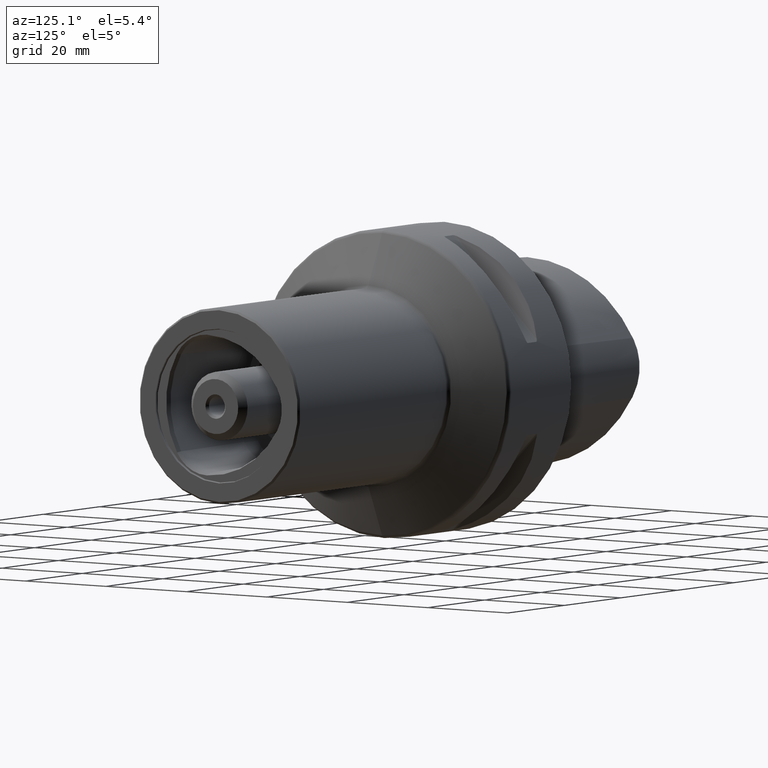
[diagram: clean part render]
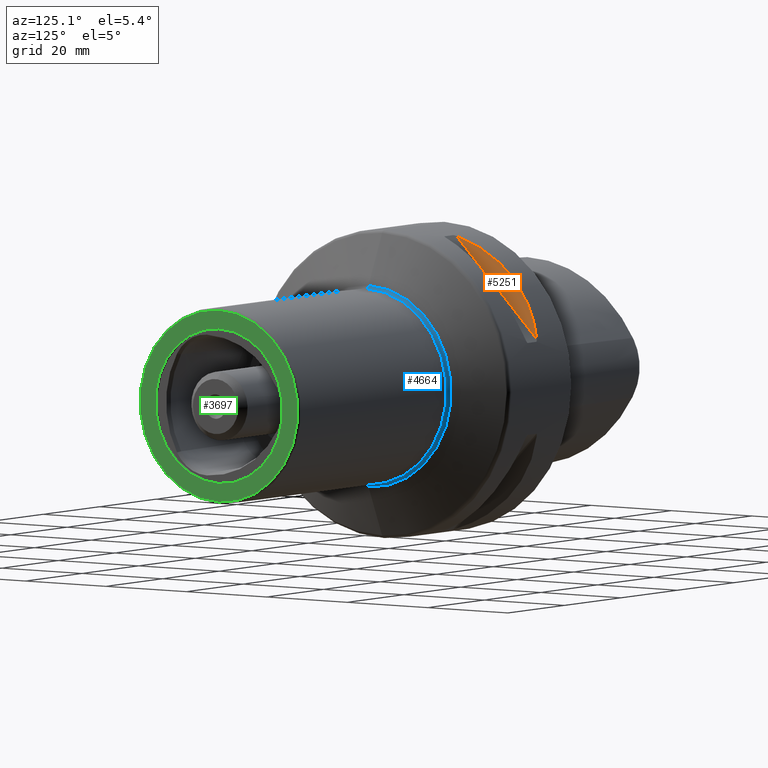
[diagram: same view with three faces highlighted in distinct colors, each labeled with its STEP entity id]
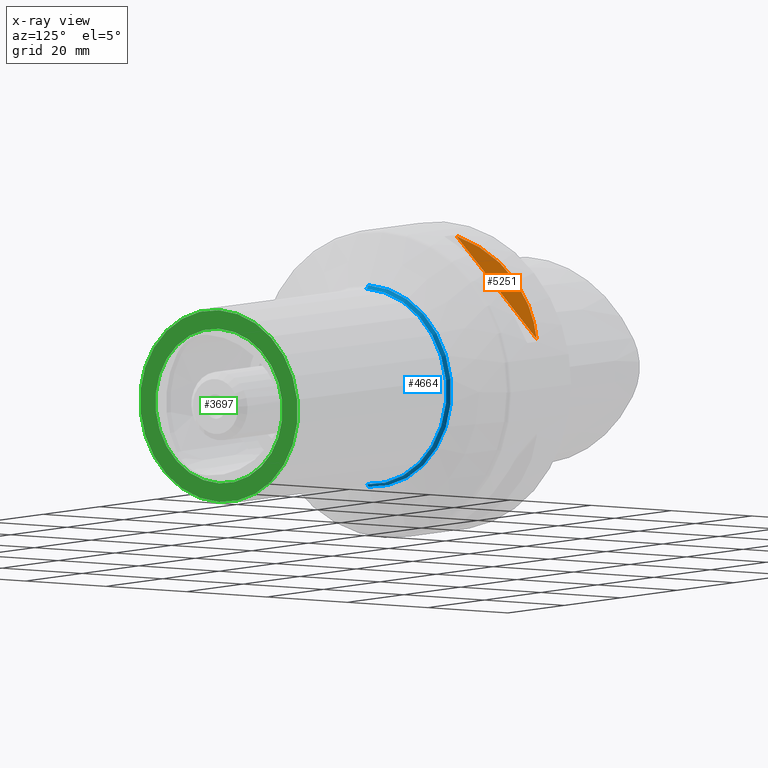
[diagram: x-ray of the same camera — body ghosted, the three highlighted faces saturated]
A machine part, auxiliary view with three faces highlighted in distinct colors.
The next image is the same camera in x-ray (body ghosted, the three faces saturated) — at least one of them is partly hidden behind the body in this view.
Their STEP definitions:

[orange] entity #5251 — the highlighted planar face has unit normal (-0.866, -0.3536, -0.3536).
#9 = ORIENTED_EDGE ( 'NONE', *, *, #2400, .F. ) ;
#185 = EDGE_LOOP ( 'NONE', ( #9, #4343 ) ) ;
#694 = DIRECTION ( 'NONE',  ( -0.3779644730092250900, 0.0000000000000000000, 0.9258200997725522000 ) ) ;
#868 = FACE_OUTER_BOUND ( 'NONE', #185, .T. ) ;
#1102 = CARTESIAN_POINT ( 'NONE',  ( 7.466715389202943400, 26.70987237765825400, 19.53756880257741100 ) ) ;
#1129 = CARTESIAN_POINT ( 'NONE',  ( 10.09474411167422200, 29.90074246011725400, 9.909369320685410500 ) ) ;
#1154 = CARTESIAN_POINT ( 'NONE',  ( 10.09474411167422200, 29.90074246011725400, 9.909369320685410500 ) ) ;
#1678 = VERTEX_POINT ( 'NONE', #4087 ) ;
#1696 = EDGE_CURVE ( 'NONE', #5761, #1678, #2861, .T. ) ;
#2333 = PLANE ( 'NONE',  #5237 ) ;
#2400 = EDGE_CURVE ( 'NONE', #1678, #5761, #3382, .T. ) ;
#2861 = LINE ( 'NONE', #6251, #3378 ) ;
#3378 = VECTOR ( 'NONE', #3583, 1000.000000000000000 ) ;
#3382 =( BOUNDED_CURVE ( )  B_SPLINE_CURVE ( 3, ( #3843, #5482, #1102, #1129 ),
 .UNSPECIFIED., .F., .F. ) 
 B_SPLINE_CURVE_WITH_KNOTS ( ( 4, 4 ),
 ( 5.817804623607747400, 6.748565990751425000 ),
 .UNSPECIFIED. ) 
 CURVE ( )  GEOMETRIC_REPRESENTATION_ITEM ( )  RATIONAL_B_SPLINE_CURVE ( ( 1.000000000000000000, 0.9291005291005289800, 0.9291005291005289800, 1.000000000000000000 ) ) 
 REPRESENTATION_ITEM ( '' )  );
#3409 = CARTESIAN_POINT ( 'NONE',  ( 10.09474411167422200, 51.40505589040133600, -11.59494410959858600 ) ) ;
#3583 = DIRECTION ( 'NONE',  ( -0.0000000000000000000, -0.7071067811865489100, 0.7071067811865462400 ) ) ;
#3843 = CARTESIAN_POINT ( 'NONE',  ( 10.09474411167422200, 9.909369320685305700, 29.90074246011728200 ) ) ;
#4087 = CARTESIAN_POINT ( 'NONE',  ( 10.09474411167422200, 9.909369320685305700, 29.90074246011728200 ) ) ;
#4343 = ORIENTED_EDGE ( 'NONE', *, *, #1696, .F. ) ;
#5237 = AXIS2_PLACEMENT_3D ( 'NONE', #3409, #6645, #694 ) ;
#5251 = ADVANCED_FACE ( 'NONE', ( #868 ), #2333, .F. ) ;
#5482 = CARTESIAN_POINT ( 'NONE',  ( 7.466715389202945200, 19.53756880257730400, 26.70987237765832800 ) ) ;
#5761 = VERTEX_POINT ( 'NONE', #1154 ) ;
#6251 = CARTESIAN_POINT ( 'NONE',  ( 10.09474411167422200, 51.40505589040133600, -11.59494410959858600 ) ) ;
#6645 = DIRECTION ( 'NONE',  ( -0.8660254037844404800, -0.3535533905932709000, -0.3535533905932722300 ) ) ;

[blue] entity #4664 — the highlighted toroidal blend (fillet) surface has major radius 21 mm and minor (blend) radius 1 mm.
#243 = AXIS2_PLACEMENT_3D ( 'NONE', #2727, #2798, #5992 ) ;
#441 = DIRECTION ( 'NONE',  ( -1.000000000000000000, -0.0000000000000000000, -0.0000000000000000000 ) ) ;
#512 = CARTESIAN_POINT ( 'NONE',  ( 27.09330054255334000, 0.0000000000000000000, 0.0000000000000000000 ) ) ;
#911 = DIRECTION ( 'NONE',  ( 0.0000000000000000000, 0.0000000000000000000, 1.000000000000000000 ) ) ;
#1106 = DIRECTION ( 'NONE',  ( -1.000000000000000000, -0.0000000000000000000, -0.0000000000000000000 ) ) ;
#1281 = DIRECTION ( 'NONE',  ( -0.0000000000000000000, 1.000000000000000000, 1.224646799147353200E-016 ) ) ;
#1300 = CARTESIAN_POINT ( 'NONE',  ( 27.99960832958998900, 2.571758278209440900E-015, -20.99999999999999300 ) ) ;
#1479 = EDGE_CURVE ( 'NONE', #2195, #3830, #4864, .T. ) ;
#1618 = ORIENTED_EDGE ( 'NONE', *, *, #1913, .T. ) ;
#1772 = CARTESIAN_POINT ( 'NONE',  ( 27.99960832958998900, 0.0000000000000000000, 0.0000000000000000000 ) ) ;
#1885 = DIRECTION ( 'NONE',  ( 0.0000000000000000000, -1.224646799147353500E-016, 1.000000000000000000 ) ) ;
#1913 = EDGE_CURVE ( 'NONE', #3315, #5365, #3107, .T. ) ;
#2005 = CARTESIAN_POINT ( 'NONE',  ( 27.99960832958999600, 0.0000000000000000000, 0.0000000000000000000 ) ) ;
#2195 = VERTEX_POINT ( 'NONE', #2603 ) ;
#2597 = AXIS2_PLACEMENT_3D ( 'NONE', #1772, #3450, #2903 ) ;
#2603 = CARTESIAN_POINT ( 'NONE',  ( 27.09330054255334000, 2.520002468059244700E-015, -20.57738173825929100 ) ) ;
#2610 = DIRECTION ( 'NONE',  ( 0.0000000000000000000, 0.0000000000000000000, 1.000000000000000000 ) ) ;
#2727 = CARTESIAN_POINT ( 'NONE',  ( 27.99960832958998900, 0.0000000000000000000, 20.99999999999999300 ) ) ;
#2798 = DIRECTION ( 'NONE',  ( 0.0000000000000000000, -1.000000000000000000, 0.0000000000000000000 ) ) ;
#2847 = CARTESIAN_POINT ( 'NONE',  ( 27.99960832958999600, 0.0000000000000000000, 19.99999999999999300 ) ) ;
#2903 = DIRECTION ( 'NONE',  ( 0.0000000000000000000, 0.0000000000000000000, 1.000000000000000000 ) ) ;
#2990 = TOROIDAL_SURFACE ( 'NONE', #2597, 20.99999999999999300, 1.000000000000000000 ) ;
#3107 = CIRCLE ( 'NONE', #243, 1.000000000000000900 ) ;
#3239 = CARTESIAN_POINT ( 'NONE',  ( 27.09330054255334000, 0.0000000000000000000, 20.57738173825929100 ) ) ;
#3315 = VERTEX_POINT ( 'NONE', #3239 ) ;
#3434 = AXIS2_PLACEMENT_3D ( 'NONE', #2005, #441, #911 ) ;
#3450 = DIRECTION ( 'NONE',  ( -1.000000000000000000, -0.0000000000000000000, -0.0000000000000000000 ) ) ;
#3580 = FACE_OUTER_BOUND ( 'NONE', #4509, .T. ) ;
#3714 = AXIS2_PLACEMENT_3D ( 'NONE', #1300, #1281, #1885 ) ;
#3830 = VERTEX_POINT ( 'NONE', #5439 ) ;
#4417 = ORIENTED_EDGE ( 'NONE', *, *, #1479, .F. ) ;
#4509 = EDGE_LOOP ( 'NONE', ( #4417, #4842, #1618, #5651 ) ) ;
#4664 = ADVANCED_FACE ( 'NONE', ( #3580 ), #2990, .F. ) ;
#4842 = ORIENTED_EDGE ( 'NONE', *, *, #4985, .F. ) ;
#4864 = CIRCLE ( 'NONE', #3714, 1.000000000000000900 ) ;
#4985 = EDGE_CURVE ( 'NONE', #3315, #2195, #5780, .T. ) ;
#5365 = VERTEX_POINT ( 'NONE', #2847 ) ;
#5439 = CARTESIAN_POINT ( 'NONE',  ( 27.99960832958999600, 2.449293598294705700E-015, -19.99999999999999300 ) ) ;
#5651 = ORIENTED_EDGE ( 'NONE', *, *, #6868, .T. ) ;
#5780 = CIRCLE ( 'NONE', #5952, 20.57738173825929500 ) ;
#5952 = AXIS2_PLACEMENT_3D ( 'NONE', #512, #1106, #2610 ) ;
#5992 = DIRECTION ( 'NONE',  ( 0.0000000000000000000, 0.0000000000000000000, -1.000000000000000000 ) ) ;
#6114 = CIRCLE ( 'NONE', #3434, 19.99999999999999300 ) ;
#6868 = EDGE_CURVE ( 'NONE', #5365, #3830, #6114, .T. ) ;

[green] entity #3697 — the highlighted planar face has unit normal (-1, 0, 0).
#471 = FACE_OUTER_BOUND ( 'NONE', #1669, .T. ) ;
#685 = CARTESIAN_POINT ( 'NONE',  ( 80.00000000000000000, 0.0000000000000000000, 0.0000000000000000000 ) ) ;
#973 = CARTESIAN_POINT ( 'NONE',  ( 80.00000000000000000, 15.79999999999999900, 0.0000000000000000000 ) ) ;
#1199 = AXIS2_PLACEMENT_3D ( 'NONE', #1626, #2074, #4357 ) ;
#1455 = CARTESIAN_POINT ( 'NONE',  ( 80.00000000000000000, 0.0000000000000000000, 0.0000000000000000000 ) ) ;
#1626 = CARTESIAN_POINT ( 'NONE',  ( 80.00000000000000000, 0.0000000000000000000, 0.0000000000000000000 ) ) ;
#1669 = EDGE_LOOP ( 'NONE', ( #3653, #2978 ) ) ;
#1785 = EDGE_CURVE ( 'NONE', #5611, #5042, #4497, .T. ) ;
#1889 = EDGE_LOOP ( 'NONE', ( #2722, #6100 ) ) ;
#2074 = DIRECTION ( 'NONE',  ( -1.000000000000000000, -0.0000000000000000000, -0.0000000000000000000 ) ) ;
#2206 = VERTEX_POINT ( 'NONE', #6972 ) ;
#2224 = CARTESIAN_POINT ( 'NONE',  ( 80.00000000000000000, 0.0000000000000000000, 15.79999999999999900 ) ) ;
#2349 = CARTESIAN_POINT ( 'NONE',  ( 80.00000000000000000, 2.424800662311759000E-015, -19.59999999999999400 ) ) ;
#2606 = AXIS2_PLACEMENT_3D ( 'NONE', #1455, #4774, #6329 ) ;
#2667 = CARTESIAN_POINT ( 'NONE',  ( 80.00000000000000000, 1.934941942652817600E-015, -15.79999999999999900 ) ) ;
#2722 = ORIENTED_EDGE ( 'NONE', *, *, #6906, .T. ) ;
#2978 = ORIENTED_EDGE ( 'NONE', *, *, #4673, .F. ) ;
#3353 = CIRCLE ( 'NONE', #6724, 19.59999999999999400 ) ;
#3653 = ORIENTED_EDGE ( 'NONE', *, *, #4335, .F. ) ;
#3697 = ADVANCED_FACE ( 'NONE', ( #471, #5954 ), #4158, .F. ) ;
#4158 = PLANE ( 'NONE',  #5937 ) ;
#4192 = AXIS2_PLACEMENT_3D ( 'NONE', #685, #5568, #6681 ) ;
#4335 = EDGE_CURVE ( 'NONE', #2206, #4675, #3353, .T. ) ;
#4350 = CIRCLE ( 'NONE', #2606, 15.79999999999999900 ) ;
#4357 = DIRECTION ( 'NONE',  ( 0.0000000000000000000, 0.0000000000000000000, 1.000000000000000000 ) ) ;
#4497 = CIRCLE ( 'NONE', #1199, 15.79999999999999900 ) ;
#4673 = EDGE_CURVE ( 'NONE', #4675, #2206, #4961, .T. ) ;
#4675 = VERTEX_POINT ( 'NONE', #2349 ) ;
#4774 = DIRECTION ( 'NONE',  ( -1.000000000000000000, -0.0000000000000000000, -0.0000000000000000000 ) ) ;
#4961 = CIRCLE ( 'NONE', #4192, 19.59999999999999400 ) ;
#5042 = VERTEX_POINT ( 'NONE', #2224 ) ;
#5370 = CARTESIAN_POINT ( 'NONE',  ( 80.00000000000000000, 0.0000000000000000000, 0.0000000000000000000 ) ) ;
#5568 = DIRECTION ( 'NONE',  ( -1.000000000000000000, -0.0000000000000000000, -0.0000000000000000000 ) ) ;
#5611 = VERTEX_POINT ( 'NONE', #2667 ) ;
#5832 = DIRECTION ( 'NONE',  ( -1.000000000000000000, -0.0000000000000000000, -0.0000000000000000000 ) ) ;
#5937 = AXIS2_PLACEMENT_3D ( 'NONE', #973, #6369, #6319 ) ;
#5954 = FACE_BOUND ( 'NONE', #1889, .T. ) ;
#6100 = ORIENTED_EDGE ( 'NONE', *, *, #1785, .T. ) ;
#6319 = DIRECTION ( 'NONE',  ( -0.0000000000000000000, 0.0000000000000000000, 1.000000000000000000 ) ) ;
#6329 = DIRECTION ( 'NONE',  ( 0.0000000000000000000, 0.0000000000000000000, 1.000000000000000000 ) ) ;
#6369 = DIRECTION ( 'NONE',  ( -1.000000000000000000, 0.0000000000000000000, -0.0000000000000000000 ) ) ;
#6418 = DIRECTION ( 'NONE',  ( 0.0000000000000000000, 0.0000000000000000000, 1.000000000000000000 ) ) ;
#6681 = DIRECTION ( 'NONE',  ( 0.0000000000000000000, 0.0000000000000000000, 1.000000000000000000 ) ) ;
#6724 = AXIS2_PLACEMENT_3D ( 'NONE', #5370, #5832, #6418 ) ;
#6906 = EDGE_CURVE ( 'NONE', #5042, #5611, #4350, .T. ) ;
#6972 = CARTESIAN_POINT ( 'NONE',  ( 80.00000000000000000, 0.0000000000000000000, 19.59999999999999400 ) ) ;